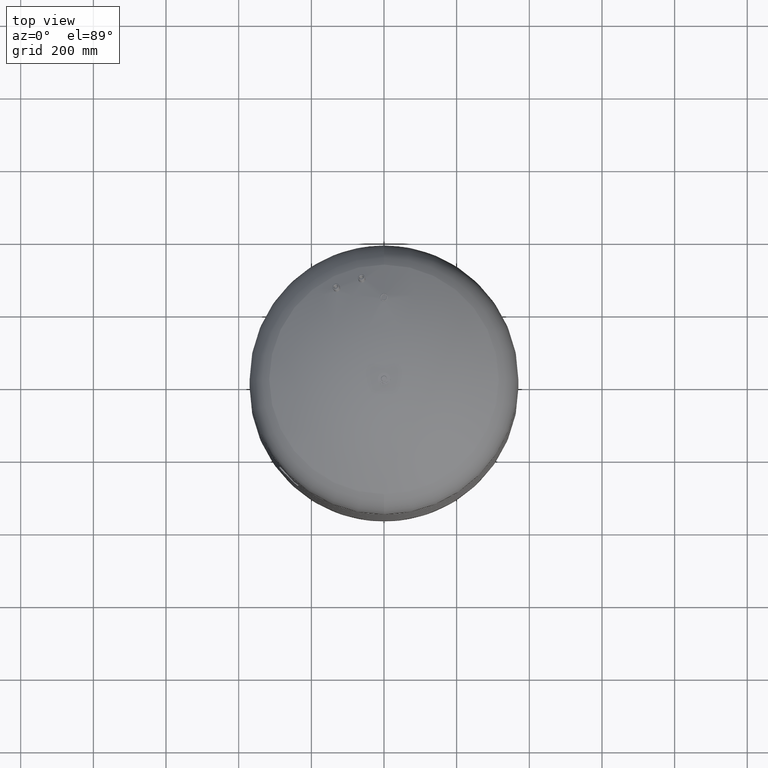
[diagram: clean part render]
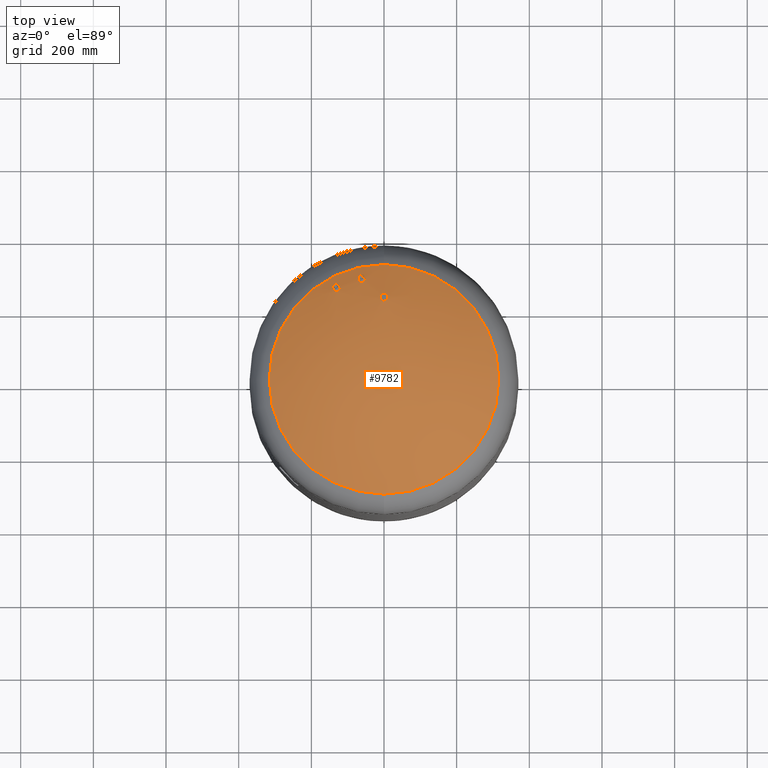
[diagram: same view with one face highlighted and labeled with its STEP entity id]
A machine part, top view. The second image highlights one B-rep face of the part: STEP entity #9782.
In plain terms, the highlighted spherical surface has radius 594 mm.
Its self-contained STEP definition (entity closure, byte-faithful):
#8966=CARTESIAN_POINT('',(-2.602824E-014,235.650000000000180,1636.256891290701600));
#8967=VERTEX_POINT('',#8966);
#8983=CARTESIAN_POINT('',(-3.249803E-014,214.350000000000160,1644.976603747847800));
#8984=VERTEX_POINT('',#8983);
#8991=CARTESIAN_POINT('',(-3.249803E-014,214.350000000000160,1644.976603747847800));
#8992=CARTESIAN_POINT('',(0.666038043721410,214.350000000000160,1644.976603747847800));
#8993=CARTESIAN_POINT('',(1.352981525517916,214.413524354886020,1644.950805071053100));
#8994=CARTESIAN_POINT('',(2.715272904608481,214.678598997980660,1644.843128376147000));
#8995=CARTESIAN_POINT('',(3.390634926952958,214.880086805006700,1644.761275260714000));
#8996=CARTESIAN_POINT('',(4.681630125253175,215.408785958660050,1644.546416626549900));
#8997=CARTESIAN_POINT('',(5.298427974080205,215.736445102668090,1644.413227623191500));
#8998=CARTESIAN_POINT('',(6.435759363091345,216.487198478308700,1644.107911251760500));
#8999=CARTESIAN_POINT('',(6.956285137066915,216.910302070195940,1643.935777970266600));
#9000=CARTESIAN_POINT('',(7.916960179157471,217.842409028087250,1643.556361428415100));
#9001=CARTESIAN_POINT('',(8.381739947968098,218.390323388397350,1643.333224298921800));
#9002=CARTESIAN_POINT('',(9.195451719827602,219.579201430897460,1642.848707115749900));
#9003=CARTESIAN_POINT('',(9.544466567579486,220.220115776826730,1642.587345140520000));
#9004=CARTESIAN_POINT('',(10.102417011131195,221.552493042210590,1642.043582261240300));
#9005=CARTESIAN_POINT('',(10.311753669868759,222.244873077360270,1641.760805702338500));
#9006=CARTESIAN_POINT('',(10.585573976371812,223.633028276844750,1641.193416225719600));
#9007=CARTESIAN_POINT('',(10.649999999999977,224.328813015859680,1640.908798925370500));
#9008=CARTESIAN_POINT('',(10.649999999999975,225.671786479226000,1640.359034886973600));
#9009=CARTESIAN_POINT('',(10.585460400361917,226.368024347549920,1640.073808877052400));
#9010=CARTESIAN_POINT('',(10.311329103602359,227.756801518715060,1639.504419187062000));
#9011=CARTESIAN_POINT('',(10.101797465229037,228.449351105819910,1639.220251677453700));
#9012=CARTESIAN_POINT('',(9.543479918171299,229.781874594479230,1638.673085682405800));
#9013=CARTESIAN_POINT('',(9.194296297222152,230.422762135664810,1638.409713356434200));
#9014=CARTESIAN_POINT('',(8.380292790655219,231.611514676519110,1637.920886082800300));
#9015=CARTESIAN_POINT('',(7.915389535509958,232.159331565944850,1637.695452971786800));
#9016=CARTESIAN_POINT('',(6.954812378860631,233.090927368555900,1637.311901637632900));
#9017=CARTESIAN_POINT('',(6.434542270618381,233.513694356713440,1637.137747219150700));
#9018=CARTESIAN_POINT('',(5.297695199627204,234.263949017529820,1636.828566804858600));
#9019=CARTESIAN_POINT('',(4.681124878051838,234.591446061424450,1636.693539129926400));
#9020=CARTESIAN_POINT('',(3.390484354499036,235.119949738899090,1636.475583316135300));
#9021=CARTESIAN_POINT('',(2.715246130797892,235.321404190540730,1636.392472082369500));
#9022=CARTESIAN_POINT('',(1.353068081394607,235.586460824110730,1636.283112812980600));
#9023=CARTESIAN_POINT('',(0.666113868125016,235.650000000000180,1636.256891290701600));
#9024=CARTESIAN_POINT('',(-2.602824E-014,235.650000000000180,1636.256891290701600));
#9025=B_SPLINE_CURVE_WITH_KNOTS('',3,(#8991,#8992,#8993,#8994,#8995,#8996,#8997,#8998,#8999,#9000,#9001,#9002,#9003,#9004,#9005,#9006,#9007,#9008,#9009,#9010,#9011,#9012,#9013,#9014,#9015,#9016,#9017,#9018,#9019,#9020,#9021,#9022,#9023,#9024),.UNSPECIFIED.,.F.,.U.,(4,2,2,2,2,2,2,2,2,2,2,2,2,2,2,2,4),(33.399548099509303,35.397662230673632,37.395776361837967,39.393890493002303,41.392004624166631,43.567748596373889,45.743492568581139,47.919236540788390,50.094980512995647,52.272667830126260,54.450355147256872,56.628042464387491,58.805729781518103,60.804071385893224,62.802412990268351,64.800754594643479,66.799096199018607),.UNSPECIFIED.);
#9026=EDGE_CURVE('',#8984,#8967,#9025,.T.);
#9180=CARTESIAN_POINT('',(-129.243551924768920,257.524553273751340,1610.435471206024200));
#9181=VERTEX_POINT('',#9180);
#9197=CARTESIAN_POINT('',(-130.137349046490210,240.741521569716100,1618.203746359460200));
#9198=VERTEX_POINT('',#9197);
#9205=CARTESIAN_POINT('',(-130.137349046490210,240.741521569716100,1618.203746359460200));
#9206=CARTESIAN_POINT('',(-129.571386774364560,240.769566917004080,1618.330644452726100));
#9207=CARTESIAN_POINT('',(-128.983368624156180,240.848956547617890,1618.438566269858300));
#9208=CARTESIAN_POINT('',(-127.807631295279950,241.118935185915090,1618.601401550465200));
#9209=CARTESIAN_POINT('',(-127.219905058204020,241.309479578009960,1618.656338017429100));
#9210=CARTESIAN_POINT('',(-126.086363301858470,241.792593358846600,1618.707258821884100));
#9211=CARTESIAN_POINT('',(-125.539642565455280,242.085548611231450,1618.703283797784900));
#9212=CARTESIAN_POINT('',(-124.522014237761940,242.750400108272570,1618.638969040643100));
#9213=CARTESIAN_POINT('',(-124.051132232967380,243.122333203697560,1618.578605415600800));
#9214=CARTESIAN_POINT('',(-123.210600896812420,243.907122624122680,1618.413311371378300));
#9215=CARTESIAN_POINT('',(-122.812319327467660,244.346801409583460,1618.302707925460300));
#9216=CARTESIAN_POINT('',(-122.101095121742960,245.296425052045320,1618.026903819878000));
#9217=CARTESIAN_POINT('',(-121.788112285879660,245.806345995712090,1617.861724489986000));
#9218=CARTESIAN_POINT('',(-121.272868172967250,246.863070067758030,1617.486369092597700));
#9219=CARTESIAN_POINT('',(-121.070195937609000,247.410715286423600,1617.275893979412600));
#9220=CARTESIAN_POINT('',(-120.784318141678130,248.505806093199880,1616.825430913872400));
#9221=CARTESIAN_POINT('',(-120.701160539569060,249.053258054910090,1616.585428021449600));
#9222=CARTESIAN_POINT('',(-120.645048880344060,250.106955699581420,1616.097725076235700));
#9223=CARTESIAN_POINT('',(-120.670229904334580,250.649211513011350,1615.833344722289000));
#9224=CARTESIAN_POINT('',(-120.840789002522460,251.721871315924860,1615.280435038444900));
#9225=CARTESIAN_POINT('',(-120.986117486582800,252.252286717004520,1614.991912551202900));
#9226=CARTESIAN_POINT('',(-121.391321718333760,253.263320454263780,1614.410182095705300));
#9227=CARTESIAN_POINT('',(-121.651519210126610,253.744741707722800,1614.116512152680100));
#9228=CARTESIAN_POINT('',(-122.265024945730990,254.628476341610370,1613.543753257280500));
#9229=CARTESIAN_POINT('',(-122.618376009204780,255.030761752403690,1613.264667016394200));
#9230=CARTESIAN_POINT('',(-123.379272435740210,255.735907670427080,1612.740393491655400));
#9231=CARTESIAN_POINT('',(-123.812782571223150,256.062928762060040,1612.477269161481700));
#9232=CARTESIAN_POINT('',(-124.764552987364750,256.630088900802600,1611.971376041888100));
#9233=CARTESIAN_POINT('',(-125.282783676294060,256.870267406416930,1611.728595818036000));
#9234=CARTESIAN_POINT('',(-126.370651287798070,257.243350340047240,1611.281364133556300));
#9235=CARTESIAN_POINT('',(-126.941154008583540,257.376551332503140,1611.076556928055900));
#9236=CARTESIAN_POINT('',(-128.094477587199070,257.531209120771900,1610.717088388904800));
#9237=CARTESIAN_POINT('',(-128.677310565932770,257.552619713672190,1610.562446067612000));
#9238=CARTESIAN_POINT('',(-129.243551924768950,257.524553273751390,1610.435471206024200));
#9239=B_SPLINE_CURVE_WITH_KNOTS('',3,(#9205,#9206,#9207,#9208,#9209,#9210,#9211,#9212,#9213,#9214,#9215,#9216,#9217,#9218,#9219,#9220,#9221,#9222,#9223,#9224,#9225,#9226,#9227,#9228,#9229,#9230,#9231,#9232,#9233,#9234,#9235,#9236,#9237,#9238),.UNSPECIFIED.,.F.,.U.,(4,2,2,2,2,2,2,2,2,2,2,2,2,2,2,2,4),(27.889433803625138,29.631509189318301,31.373584575011460,33.115659960704619,34.857735346397781,36.600969895663752,38.344204444929716,40.087438994195686,41.830673543461657,43.574777903323429,45.318882263185202,47.062986623046967,48.807090982908740,50.550035776307269,52.292980569705804,54.035925363104333,55.778870156502862),.UNSPECIFIED.);
#9240=EDGE_CURVE('',#9198,#9181,#9239,.T.);
#9394=CARTESIAN_POINT('',(-60.560413270180014,282.420371123089750,1610.044478170456200));
#9395=VERTEX_POINT('',#9394);
#9411=CARTESIAN_POINT('',(-61.021542538394016,266.000390834510200,1618.594696165648200));
#9412=VERTEX_POINT('',#9411);
#9419=CARTESIAN_POINT('',(-61.021542538394016,266.000390834510200,1618.594696165648200));
#9420=CARTESIAN_POINT('',(-60.444129108849708,266.014861339862880,1618.654184061000300));
#9421=CARTESIAN_POINT('',(-59.845598976412980,266.079131115946380,1618.690032735532400));
#9422=CARTESIAN_POINT('',(-58.651894747790116,266.316597542579250,1618.704268976979200));
#9423=CARTESIAN_POINT('',(-58.056712180494713,266.489750165257530,1618.682680601858500));
#9424=CARTESIAN_POINT('',(-56.911947054418022,266.936924105322420,1618.581357717630000));
#9425=CARTESIAN_POINT('',(-56.361450517579229,267.211302325794520,1618.501542368086800));
#9426=CARTESIAN_POINT('',(-55.340043680273439,267.839072869071690,1618.291267712546900));
#9427=CARTESIAN_POINT('',(-54.869160415287425,268.192501711393220,1618.160786113287900));
#9428=CARTESIAN_POINT('',(-54.031733711652173,268.941849853380060,1617.865439190341000));
#9429=CARTESIAN_POINT('',(-53.636680597366002,269.363421373885160,1617.690445034688800));
#9430=CARTESIAN_POINT('',(-52.935651428895603,270.277362354312000,1617.293012852329400));
#9431=CARTESIAN_POINT('',(-52.629633559242890,270.769707404207570,1617.070592451782700));
#9432=CARTESIAN_POINT('',(-52.131699579442653,271.793084706193100,1616.592224089893500));
#9433=CARTESIAN_POINT('',(-51.939386893679192,272.324931290633630,1616.335895498049200));
#9434=CARTESIAN_POINT('',(-51.676803241198854,273.391195433439580,1615.807710955472000));
#9435=CARTESIAN_POINT('',(-51.606581599614515,273.925620376317570,1615.535845391645100));
#9436=CARTESIAN_POINT('',(-51.577630837887014,274.956540412332000,1614.999033318480800));
#9437=CARTESIAN_POINT('',(-51.617939637560966,275.488281033322950,1614.715730840659700));
#9438=CARTESIAN_POINT('',(-51.821024371048381,276.542964293886090,1614.139505047911800));
#9439=CARTESIAN_POINT('',(-51.983750138670082,277.065916916403520,1613.846582325654700));
#9440=CARTESIAN_POINT('',(-52.424907097296611,278.065710236248440,1613.271453510026000));
#9441=CARTESIAN_POINT('',(-52.703688859869459,278.543345093747400,1612.988790567862000));
#9442=CARTESIAN_POINT('',(-53.354295994765039,279.423277123357650,1612.452128861795000));
#9443=CARTESIAN_POINT('',(-53.726164539467433,279.825547794527440,1612.198138985972000));
#9444=CARTESIAN_POINT('',(-54.522505748464781,280.533794574606990,1611.734504134924700));
#9445=CARTESIAN_POINT('',(-54.974111036777671,280.864049968091590,1611.508984716566100));
#9446=CARTESIAN_POINT('',(-55.961545208142141,281.441413951665480,1611.091729015408900));
#9447=CARTESIAN_POINT('',(-56.497344996806021,281.688560415460980,1610.899976288878200));
#9448=CARTESIAN_POINT('',(-57.618549752325400,282.078961360517040,1610.565147684108800));
#9449=CARTESIAN_POINT('',(-58.204848320907487,282.222526661987440,1610.421805139650100));
#9450=CARTESIAN_POINT('',(-59.386993872410116,282.400493089443100,1610.191214332163300));
#9451=CARTESIAN_POINT('',(-59.982851939369411,282.434849377331830,1610.103988290003800));
#9452=CARTESIAN_POINT('',(-60.560413270180014,282.420371123089750,1610.044478170456200));
#9453=B_SPLINE_CURVE_WITH_KNOTS('',3,(#9419,#9420,#9421,#9422,#9423,#9424,#9425,#9426,#9427,#9428,#9429,#9430,#9431,#9432,#9433,#9434,#9435,#9436,#9437,#9438,#9439,#9440,#9441,#9442,#9443,#9444,#9445,#9446,#9447,#9448,#9449,#9450,#9451,#9452),.UNSPECIFIED.,.F.,.U.,(4,2,2,2,2,2,2,2,2,2,2,2,2,2,2,2,4),(27.889434749710926,29.631384882329606,31.373335014948282,33.115285147566958,34.857235280185634,36.601016540085894,38.344797799986161,40.088579059886428,41.832360319786687,43.576588982808254,45.320817645829820,47.065046308851386,48.809274971872952,50.551673745173630,52.294072518474309,54.036471291774987,55.778870065075665),.UNSPECIFIED.);
#9454=EDGE_CURVE('',#9412,#9395,#9453,.T.);
#9555=CARTESIAN_POINT('',(-4.983290E-014,-315.931034482758610,1594.014494274920300));
#9556=VERTEX_POINT('',#9555);
#9572=CARTESIAN_POINT('',(6.623700E-014,315.931034482758610,1594.014494274920300));
#9573=VERTEX_POINT('',#9572);
#9581=CARTESIAN_POINT('',(315.931034482758610,-3.869039E-014,1594.014494274920500));
#9582=VERTEX_POINT('',#9581);
#9583=CARTESIAN_POINT('',(-1.114251E-014,1.577722E-030,1594.014494274920500));
#9584=DIRECTION('',(0.0,0.0,-1.0));
#9585=DIRECTION('',(1.0,0.0,0.0));
#9586=AXIS2_PLACEMENT_3D('',#9583,#9584,#9585);
#9587=CIRCLE('',#9586,315.931034482758610);
#9588=EDGE_CURVE('',#9573,#9582,#9587,.T.);
#9590=CARTESIAN_POINT('',(-1.114251E-014,1.577722E-030,1594.014494274920500));
#9591=DIRECTION('',(0.0,0.0,-1.0));
#9592=DIRECTION('',(1.0,0.0,0.0));
#9593=AXIS2_PLACEMENT_3D('',#9590,#9591,#9592);
#9594=CIRCLE('',#9593,315.931034482758610);
#9595=EDGE_CURVE('',#9582,#9556,#9594,.T.);
#9646=CARTESIAN_POINT('',(-7.274402E-014,1.262177E-029,1091.0));
#9647=DIRECTION('',(0.0,-1.0,0.0));
#9648=DIRECTION('',(-1.0,0.0,0.0));
#9649=AXIS2_PLACEMENT_3D('',#9646,#9647,#9648);
#9650=SPHERICAL_SURFACE('',#9649,594.0);
#9651=ORIENTED_EDGE('',*,*,#9595,.F.);
#9652=ORIENTED_EDGE('',*,*,#9588,.F.);
#9653=CARTESIAN_POINT('',(-1.114251E-014,1.577722E-030,1594.014494274920500));
#9654=DIRECTION('',(0.0,0.0,-1.0));
#9655=DIRECTION('',(1.0,0.0,0.0));
#9656=AXIS2_PLACEMENT_3D('',#9653,#9654,#9655);
#9657=CIRCLE('',#9656,315.931034482758610);
#9658=EDGE_CURVE('',#9556,#9573,#9657,.T.);
#9659=ORIENTED_EDGE('',*,*,#9658,.F.);
#9660=EDGE_LOOP('',(#9651,#9652,#9659));
#9661=FACE_OUTER_BOUND('',#9660,.T.);
#9662=CARTESIAN_POINT('',(-60.560413270180035,282.420371123089860,1610.044478170456400));
#9663=CARTESIAN_POINT('',(-61.137826029646305,282.405896593220400,1609.984983359236800));
#9664=CARTESIAN_POINT('',(-61.736355814922241,282.341624282732940,1609.949130405896500));
#9665=CARTESIAN_POINT('',(-62.930060240218374,282.104156712187200,1609.934892510441200));
#9666=CARTESIAN_POINT('',(-63.525243352428703,281.931005485075730,1609.956483515700500));
#9667=CARTESIAN_POINT('',(-64.670010464865555,281.483838095288430,1610.057818376153800));
#9668=CARTESIAN_POINT('',(-65.220508437535528,281.209465034662680,1610.137643067884700));
#9669=CARTESIAN_POINT('',(-66.241918775973005,280.581707403618220,1610.347941233387200));
#9670=CARTESIAN_POINT('',(-66.712804102567816,280.228286298901030,1610.478436974426400));
#9671=CARTESIAN_POINT('',(-67.550234390484704,279.478955023463410,1610.773813687699200));
#9672=CARTESIAN_POINT('',(-67.945289287683437,279.057393331440610,1610.948824462713900));
#9673=CARTESIAN_POINT('',(-68.646322257937797,278.143472518106650,1611.346290757906900));
#9674=CARTESIAN_POINT('',(-68.952342145374644,277.651137790829520,1611.568728616944100));
#9675=CARTESIAN_POINT('',(-69.450279886180070,276.627779784542670,1612.047129435468800));
#9676=CARTESIAN_POINT('',(-69.642594337873746,276.095942174153320,1612.303473017204400));
#9677=CARTESIAN_POINT('',(-69.905180940125334,275.029693189560190,1612.831682396466900));
#9678=CARTESIAN_POINT('',(-69.975403770618328,274.495274420576270,1613.103557783877700));
#9679=CARTESIAN_POINT('',(-70.004352719910841,273.464490424693740,1613.640316992887400));
#9680=CARTESIAN_POINT('',(-69.964068205817838,272.932879489932190,1613.923554343642500));
#9681=CARTESIAN_POINT('',(-69.761087210689581,271.878434739394550,1614.499645337799600));
#9682=CARTESIAN_POINT('',(-69.598440845234208,271.355590949436530,1614.792498381701800));
#9683=CARTESIAN_POINT('',(-69.157491127192074,270.355980792873880,1615.367491497200000));
#9684=CARTESIAN_POINT('',(-68.878837543161509,269.878420737686950,1615.650088132829300));
#9685=CARTESIAN_POINT('',(-68.228524012141108,268.998595719929880,1616.186628952776100));
#9686=CARTESIAN_POINT('',(-67.856820949977447,268.596357231391950,1616.440564290563500));
#9687=CARTESIAN_POINT('',(-67.060632626549335,267.887953965887390,1616.904224330043500));
#9688=CARTESIAN_POINT('',(-66.608980042310634,267.557540075705390,1617.129810333588000));
#9689=CARTESIAN_POINT('',(-65.621406378754344,266.979892191542320,1617.547185906034200));
#9690=CARTESIAN_POINT('',(-65.085514440596626,266.732620296632720,1617.738991970897600));
#9691=CARTESIAN_POINT('',(-63.964092121196927,266.342014356588720,1618.073910272940600));
#9692=CARTESIAN_POINT('',(-63.377667605691968,266.198369204130700,1618.217289393750200));
#9693=CARTESIAN_POINT('',(-62.195251474024076,266.020296071122170,1618.447934422047900));
#9694=CARTESIAN_POINT('',(-61.599248761183205,265.985912991492680,1618.535178105334600));
#9695=CARTESIAN_POINT('',(-61.021542538394016,266.000390834510200,1618.594696165648200));
#9696=B_SPLINE_CURVE_WITH_KNOTS('',3,(#9662,#9663,#9664,#9665,#9666,#9667,#9668,#9669,#9670,#9671,#9672,#9673,#9674,#9675,#9676,#9677,#9678,#9679,#9680,#9681,#9682,#9683,#9684,#9685,#9686,#9687,#9688,#9689,#9690,#9691,#9692,#9693,#9694,#9695),.UNSPECIFIED.,.F.,.U.,(4,2,2,2,2,2,2,2,2,2,2,2,2,2,2,2,4),(0.0,1.741950560246490,3.483901120492980,5.225851680739471,6.967802240985961,8.711580908881125,10.455359576776290,12.199138244671456,13.942916912566620,15.686712935857864,17.430508959149108,19.174304982440354,20.918101005731600,22.660934441726432,24.403767877721265,26.146601313716097,27.889434749710926),.UNSPECIFIED.);
#9697=EDGE_CURVE('',#9395,#9412,#9696,.T.);
#9698=ORIENTED_EDGE('',*,*,#9697,.F.);
#9699=ORIENTED_EDGE('',*,*,#9454,.F.);
#9700=EDGE_LOOP('',(#9698,#9699));
#9701=FACE_BOUND('',#9700,.T.);
#9702=CARTESIAN_POINT('',(-129.243551924768950,257.524553273751390,1610.435471206024200));
#9703=CARTESIAN_POINT('',(-129.809510934773470,257.496500828792990,1610.308559658787100));
#9704=CARTESIAN_POINT('',(-130.397526110253750,257.417104741510290,1610.200625781133100));
#9705=CARTESIAN_POINT('',(-131.573258864935700,257.147116031219580,1610.037771948423100));
#9706=CARTESIAN_POINT('',(-132.160983508351190,256.956568035832730,1609.982829011507400));
#9707=CARTESIAN_POINT('',(-133.294523915524390,256.473450704290140,1609.931902281410700));
#9708=CARTESIAN_POINT('',(-133.841244888053720,256.180495506331060,1609.935877851962200));
#9709=CARTESIAN_POINT('',(-134.858875476999030,255.515647585112330,1610.000200363429500));
#9710=CARTESIAN_POINT('',(-135.329759502928280,255.143718003890970,1610.060571185205800));
#9711=CARTESIAN_POINT('',(-136.170295500716750,254.358938493606730,1610.225884064577000));
#9712=CARTESIAN_POINT('',(-136.568580049543020,253.919266481448430,1610.336499752418400));
#9713=CARTESIAN_POINT('',(-137.279811589062040,252.969658534232760,1610.612332526340400));
#9714=CARTESIAN_POINT('',(-137.592798774335760,252.459746501063730,1610.777528255672000));
#9715=CARTESIAN_POINT('',(-138.108052027658770,251.403040818453550,1611.152917698125300));
#9716=CARTESIAN_POINT('',(-138.310729068587420,250.855405080705990,1611.363410447025900));
#9717=CARTESIAN_POINT('',(-138.596615961813140,249.760332145049200,1611.813906780990000));
#9718=CARTESIAN_POINT('',(-138.679777852014500,249.212888558794080,1612.053925272698300));
#9719=CARTESIAN_POINT('',(-138.735896891344790,248.159204885361930,1612.541655031452600));
#9720=CARTESIAN_POINT('',(-138.710719132009530,247.616955239730630,1612.806047516581000));
#9721=CARTESIAN_POINT('',(-138.540165035474810,246.544305097911690,1613.358975844123500));
#9722=CARTESIAN_POINT('',(-138.394838291093490,246.013893177637780,1613.647504820460200));
#9723=CARTESIAN_POINT('',(-137.989635751914960,245.002862946644770,1614.229241126764900));
#9724=CARTESIAN_POINT('',(-137.729438240783000,244.521441705399870,1614.522910429986700));
#9725=CARTESIAN_POINT('',(-137.115930942902790,243.637703714648320,1615.095661274931000));
#9726=CARTESIAN_POINT('',(-136.762578347589970,243.235414935212730,1615.374740117734700));
#9727=CARTESIAN_POINT('',(-136.001677314388900,242.530259220748410,1615.898994731813700));
#9728=CARTESIAN_POINT('',(-135.568163743926930,242.203231443477140,1616.162106901077800));
#9729=CARTESIAN_POINT('',(-134.616385317770350,241.636055774329010,1616.667971462162300));
#9730=CARTESIAN_POINT('',(-134.098150064227580,241.395868431068380,1616.910735315911300));
#9731=CARTESIAN_POINT('',(-133.010272900902920,241.022767202369150,1617.357933026282400));
#9732=CARTESIAN_POINT('',(-132.439765207145430,240.889556737485780,1617.562722636736500));
#9733=CARTESIAN_POINT('',(-131.286432059450870,240.734881123602610,1617.922158000043700));
#9734=CARTESIAN_POINT('',(-130.703594493203810,240.713462190168260,1618.076784773772500));
#9735=CARTESIAN_POINT('',(-130.137349046490210,240.741521569716100,1618.203746359460200));
#9736=B_SPLINE_CURVE_WITH_KNOTS('',3,(#9702,#9703,#9704,#9705,#9706,#9707,#9708,#9709,#9710,#9711,#9712,#9713,#9714,#9715,#9716,#9717,#9718,#9719,#9720,#9721,#9722,#9723,#9724,#9725,#9726,#9727,#9728,#9729,#9730,#9731,#9732,#9733,#9734,#9735),.UNSPECIFIED.,.F.,.U.,(4,2,2,2,2,2,2,2,2,2,2,2,2,2,2,2,4),(0.0,1.742075696822753,3.484151393645507,5.226227090468260,6.968302787291013,8.711535100219452,10.454767413147890,12.197999726076329,13.941232039004767,15.685335461314201,17.429438883623636,19.173542305933069,20.917645728242505,22.660592747088163,24.403539765933822,26.146486784779480,27.889433803625138),.UNSPECIFIED.);
#9737=EDGE_CURVE('',#9181,#9198,#9736,.T.);
#9738=ORIENTED_EDGE('',*,*,#9737,.F.);
#9739=ORIENTED_EDGE('',*,*,#9240,.F.);
#9740=EDGE_LOOP('',(#9738,#9739));
#9741=FACE_BOUND('',#9740,.T.);
#9742=CARTESIAN_POINT('',(-2.602824E-014,235.650000000000180,1636.256891290701600));
#9743=CARTESIAN_POINT('',(-0.666113868125066,235.650000000000180,1636.256891290701600));
#9744=CARTESIAN_POINT('',(-1.353068081394652,235.586460824110730,1636.283112812980600));
#9745=CARTESIAN_POINT('',(-2.715246130797932,235.321404190540730,1636.392472082369500));
#9746=CARTESIAN_POINT('',(-3.390484354499083,235.119949738899150,1636.475583316135300));
#9747=CARTESIAN_POINT('',(-4.681124878051886,234.591446061424450,1636.693539129926400));
#9748=CARTESIAN_POINT('',(-5.297695199627238,234.263949017529880,1636.828566804858600));
#9749=CARTESIAN_POINT('',(-6.434542270618407,233.513694356713500,1637.137747219150700));
#9750=CARTESIAN_POINT('',(-6.954812378860680,233.090927368555920,1637.311901637632900));
#9751=CARTESIAN_POINT('',(-7.915389535510010,232.159331565944850,1637.695452971786800));
#9752=CARTESIAN_POINT('',(-8.380292790655293,231.611514676519110,1637.920886082800300));
#9753=CARTESIAN_POINT('',(-9.194296297222223,230.422762135664810,1638.409713356434200));
#9754=CARTESIAN_POINT('',(-9.543479918171364,229.781874594479180,1638.673085682405800));
#9755=CARTESIAN_POINT('',(-10.101797465229099,228.449351105819860,1639.220251677453700));
#9756=CARTESIAN_POINT('',(-10.311329103602421,227.756801518715060,1639.504419187062000));
#9757=CARTESIAN_POINT('',(-10.585460400361974,226.368024347549920,1640.073808877052400));
#9758=CARTESIAN_POINT('',(-10.650000000000032,225.671786479226000,1640.359034886973600));
#9759=CARTESIAN_POINT('',(-10.650000000000032,224.328813015859680,1640.908798925370500));
#9760=CARTESIAN_POINT('',(-10.585573976371871,223.633028276844780,1641.193416225719600));
#9761=CARTESIAN_POINT('',(-10.311753669868818,222.244873077360300,1641.760805702338500));
#9762=CARTESIAN_POINT('',(-10.102417011131251,221.552493042210590,1642.043582261240300));
#9763=CARTESIAN_POINT('',(-9.544466567579541,220.220115776826730,1642.587345140520000));
#9764=CARTESIAN_POINT('',(-9.195451719827659,219.579201430897460,1642.848707115749900));
#9765=CARTESIAN_POINT('',(-8.381739947968157,218.390323388397350,1643.333224298921800));
#9766=CARTESIAN_POINT('',(-7.916960179157535,217.842409028087250,1643.556361428415100));
#9767=CARTESIAN_POINT('',(-6.956285137066981,216.910302070195940,1643.935777970266600));
#9768=CARTESIAN_POINT('',(-6.435759363091423,216.487198478308670,1644.107911251760500));
#9769=CARTESIAN_POINT('',(-5.298427974080282,215.736445102668060,1644.413227623191500));
#9770=CARTESIAN_POINT('',(-4.681630125253232,215.408785958660080,1644.546416626549900));
#9771=CARTESIAN_POINT('',(-3.390634926953018,214.880086805006730,1644.761275260714000));
#9772=CARTESIAN_POINT('',(-2.715272904608545,214.678598997980660,1644.843128376147000));
#9773=CARTESIAN_POINT('',(-1.352981525517988,214.413524354886020,1644.950805071053100));
#9774=CARTESIAN_POINT('',(-0.666038043721476,214.350000000000160,1644.976603747847800));
#9775=CARTESIAN_POINT('',(-3.249803E-014,214.350000000000160,1644.976603747847800));
#9776=B_SPLINE_CURVE_WITH_KNOTS('',3,(#9742,#9743,#9744,#9745,#9746,#9747,#9748,#9749,#9750,#9751,#9752,#9753,#9754,#9755,#9756,#9757,#9758,#9759,#9760,#9761,#9762,#9763,#9764,#9765,#9766,#9767,#9768,#9769,#9770,#9771,#9772,#9773,#9774,#9775),.UNSPECIFIED.,.F.,.U.,(4,2,2,2,2,2,2,2,2,2,2,2,2,2,2,2,4),(0.0,1.998341604375121,3.996683208750242,5.995024813125363,7.993366417500484,10.171053734631105,12.348741051761724,14.526428368892345,16.704115686022966,18.879859658230217,21.055603630437471,23.231347602644725,25.407091574851975,27.405205706016307,29.403319837180639,31.401433968344971,33.399548099509303),.UNSPECIFIED.);
#9777=EDGE_CURVE('',#8967,#8984,#9776,.T.);
#9778=ORIENTED_EDGE('',*,*,#9777,.F.);
#9779=ORIENTED_EDGE('',*,*,#9026,.F.);
#9780=EDGE_LOOP('',(#9778,#9779));
#9781=FACE_BOUND('',#9780,.T.);
#9782=ADVANCED_FACE('',(#9661,#9701,#9741,#9781),#9650,.T.);